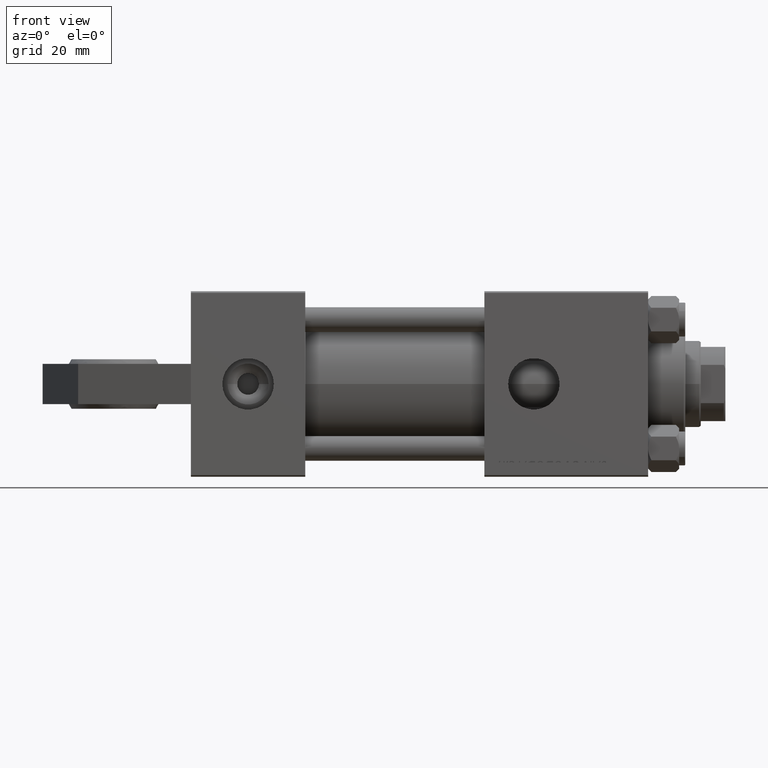
[diagram: clean part render]
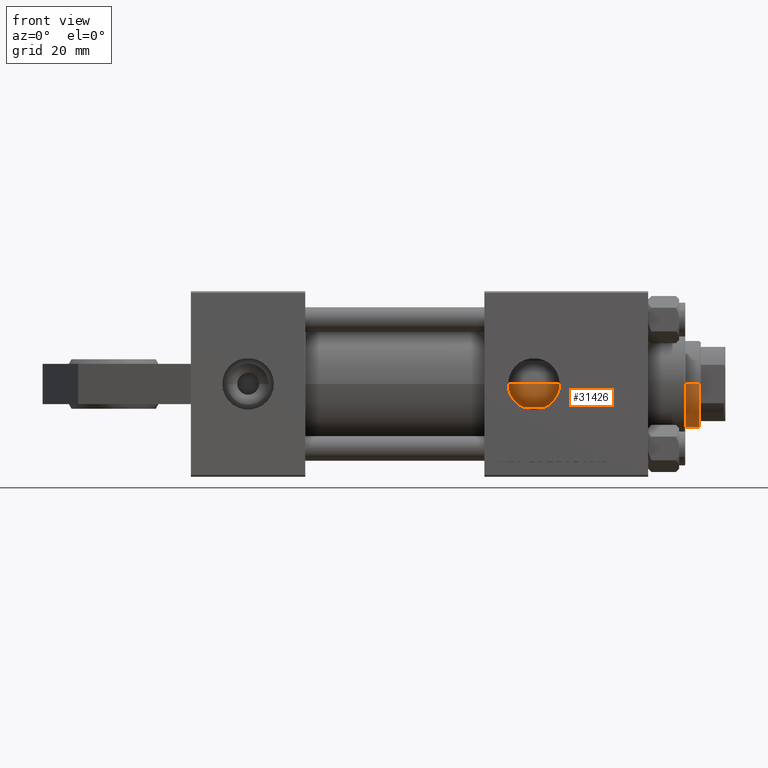
[diagram: same view with one face highlighted and labeled with its STEP entity id]
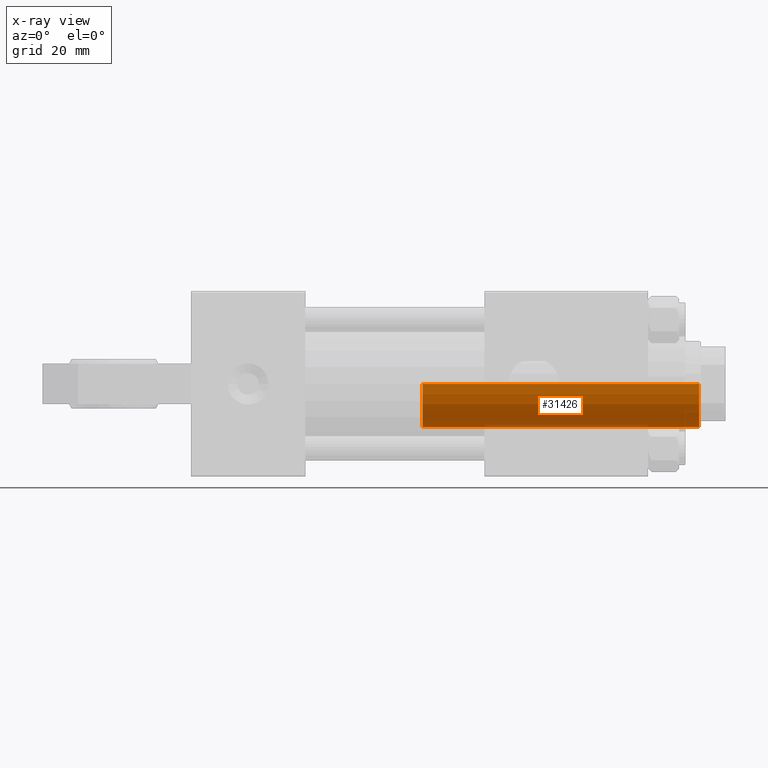
[diagram: x-ray of the same camera — body ghosted, the highlighted face saturated]
A machine part, front view. The second image highlights one B-rep face of the part: STEP entity #31426.
The next image is the same camera in x-ray: the body ghosted, the highlighted face saturated — about 3% of this face is hidden behind the body in this view.
In plain terms, the highlighted cylindrical surface (partial cylindrical patch) has radius 14 mm, axis along (-1, 0, 0).
Its self-contained STEP definition (entity closure, byte-faithful):
#693 = DIRECTION ( 'NONE',  ( -1.000000000000000000, 0.000000000000000000, 0.000000000000000000 ) ) ;
#798 = CARTESIAN_POINT ( 'NONE',  ( 14.00000000000000178, 1.714505518806294441E-15, 128.0000000000000000 ) ) ;
#1161 = VECTOR ( 'NONE', #12255, 1000.000000000000000 ) ;
#2638 = ORIENTED_EDGE ( 'NONE', *, *, #43649, .T. ) ;
#3556 = CIRCLE ( 'NONE', #16532, 14.00000000000000178 ) ;
#8827 = DIRECTION ( 'NONE',  ( -0.000000000000000000, -0.000000000000000000, -1.000000000000000000 ) ) ;
#9078 = CARTESIAN_POINT ( 'NONE',  ( 0.000000000000000000, 0.000000000000000000, 128.0000000000000000 ) ) ;
#9336 = CARTESIAN_POINT ( 'NONE',  ( -14.00000000000000178, 0.000000000000000000, 128.0000000000000000 ) ) ;
#9718 = ORIENTED_EDGE ( 'NONE', *, *, #17109, .T. ) ;
#10163 = CARTESIAN_POINT ( 'NONE',  ( 0.000000000000000000, 0.000000000000000000, 127.5000000000000853 ) ) ;
#11873 = EDGE_CURVE ( 'NONE', #43072, #26085, #48195, .T. ) ;
#11924 = ORIENTED_EDGE ( 'NONE', *, *, #11873, .T. ) ;
#12011 = LINE ( 'NONE', #798, #1161 ) ;
#12036 = EDGE_LOOP ( 'NONE', ( #9718, #2638, #11924, #44209 ) ) ;
#12255 = DIRECTION ( 'NONE',  ( -0.000000000000000000, -0.000000000000000000, -1.000000000000000000 ) ) ;
#16532 = AXIS2_PLACEMENT_3D ( 'NONE', #10163, #28741, #48589 ) ;
#16660 = CARTESIAN_POINT ( 'NONE',  ( -14.00000000000000178, 0.000000000000000000, 38.00000000000000000 ) ) ;
#16715 = FACE_OUTER_BOUND ( 'NONE', #12036, .T. ) ;
#17109 = EDGE_CURVE ( 'NONE', #39688, #18494, #3556, .T. ) ;
#18494 = VERTEX_POINT ( 'NONE', #24058 ) ;
#22354 = CARTESIAN_POINT ( 'NONE',  ( 0.000000000000000000, 0.000000000000000000, 38.00000000000000000 ) ) ;
#24058 = CARTESIAN_POINT ( 'NONE',  ( 14.00000000000000178, 1.714505518806294441E-15, 127.5000000000000853 ) ) ;
#26085 = VERTEX_POINT ( 'NONE', #16660 ) ;
#28741 = DIRECTION ( 'NONE',  ( 0.000000000000000000, 0.000000000000000000, -1.000000000000000000 ) ) ;
#30254 = DIRECTION ( 'NONE',  ( 0.000000000000000000, 0.000000000000000000, 1.000000000000000000 ) ) ;
#31426 = ADVANCED_FACE ( 'NONE', ( #16715 ), #47766, .T. ) ;
#31453 = EDGE_CURVE ( 'NONE', #39688, #26085, #48272, .T. ) ;
#36787 = CARTESIAN_POINT ( 'NONE',  ( 14.00000000000000178, 1.714505518806294441E-15, 38.00000000000000000 ) ) ;
#39688 = VERTEX_POINT ( 'NONE', #41591 ) ;
#39827 = AXIS2_PLACEMENT_3D ( 'NONE', #9078, #44192, #693 ) ;
#41591 = CARTESIAN_POINT ( 'NONE',  ( -14.00000000000000178, 0.000000000000000000, 127.5000000000000853 ) ) ;
#42478 = AXIS2_PLACEMENT_3D ( 'NONE', #22354, #30254, #45268 ) ;
#43072 = VERTEX_POINT ( 'NONE', #36787 ) ;
#43649 = EDGE_CURVE ( 'NONE', #18494, #43072, #12011, .T. ) ;
#44192 = DIRECTION ( 'NONE',  ( -0.000000000000000000, -0.000000000000000000, -1.000000000000000000 ) ) ;
#44209 = ORIENTED_EDGE ( 'NONE', *, *, #31453, .F. ) ;
#45268 = DIRECTION ( 'NONE',  ( 1.000000000000000000, 0.000000000000000000, 0.000000000000000000 ) ) ;
#47766 = CYLINDRICAL_SURFACE ( 'NONE', #39827, 14.00000000000000178 ) ;
#47988 = VECTOR ( 'NONE', #8827, 1000.000000000000000 ) ;
#48195 = CIRCLE ( 'NONE', #42478, 14.00000000000000178 ) ;
#48272 = LINE ( 'NONE', #9336, #47988 ) ;
#48589 = DIRECTION ( 'NONE',  ( 1.000000000000000000, 0.000000000000000000, 0.000000000000000000 ) ) ;